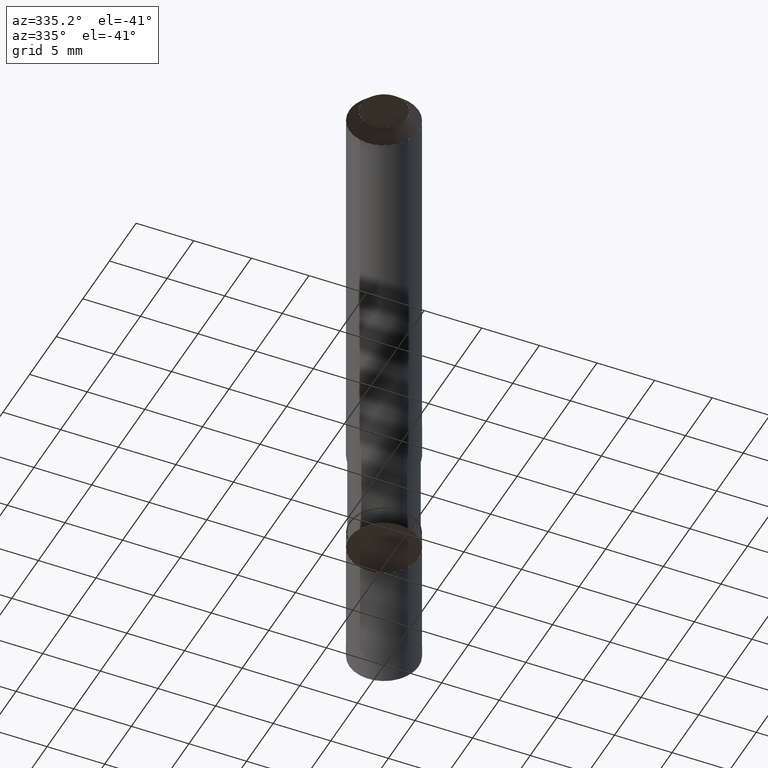
[diagram: clean part render]
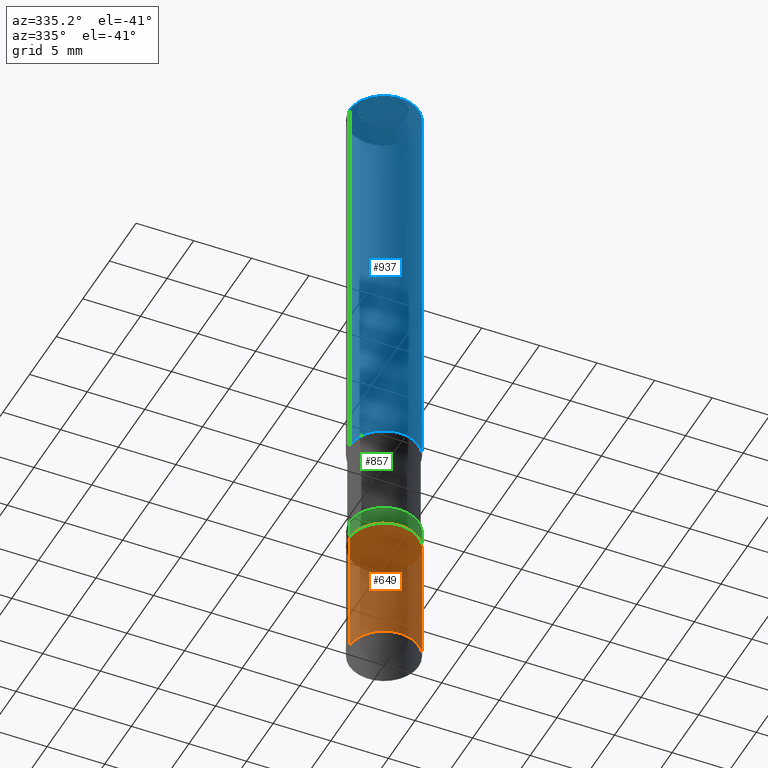
[diagram: same view with three faces highlighted in distinct colors, each labeled with its STEP entity id]
A machine part, auxiliary view with three faces highlighted in distinct colors.
Their STEP definitions:

[orange] entity #649 — the highlighted face is a freeform B-spline surface patch.
#448=CARTESIAN_POINT('',(3.0,0.0,-20.9));
#452=CARTESIAN_POINT('',(-3.0,0.0,-20.9));
#453=CARTESIAN_POINT('',(3.0,0.0,-9.625));
#457=CARTESIAN_POINT('',(-3.0,0.0,-9.625));
#462=CARTESIAN_POINT('',(-3.0,-3.0,-20.9));
#463=CARTESIAN_POINT('',(0.0,-3.0,-20.9));
#464=CARTESIAN_POINT('',(3.0,-3.0,-20.9));
#465=CARTESIAN_POINT('',(-3.0,-3.0,-9.625));
#466=CARTESIAN_POINT('',(0.0,-3.0,-9.625));
#467=CARTESIAN_POINT('',(3.0,-3.0,-9.625));
#630=(
BOUNDED_SURFACE()
B_SPLINE_SURFACE(1,2,(
(#452,#462,#463,#464,#448),
(#457,#465,#466,#467,#453)
), .UNSPECIFIED.,.F.,.F.,.F.)
B_SPLINE_SURFACE_WITH_KNOTS((2,2),(3,2,3),(
0.0,1.0),(
0.0,0.5,1.0), .UNSPECIFIED.)
GEOMETRIC_REPRESENTATION_ITEM()
RATIONAL_B_SPLINE_SURFACE(((1.0,0.707106781187,1.0,0.707106781187,1.0),
(1.0,0.707106781187,1.0,0.707106781187,1.0)
))
REPRESENTATION_ITEM('')
SURFACE()
);
#631=(
BOUNDED_CURVE()
B_SPLINE_CURVE(2,(#448,#464,#463,#462,#452),.UNSPECIFIED.,.F.,.F.)
B_SPLINE_CURVE_WITH_KNOTS((3,2,3),
(0.0,0.5,1.0),.UNSPECIFIED.)
CURVE()
GEOMETRIC_REPRESENTATION_ITEM()
RATIONAL_B_SPLINE_CURVE((1.0,0.707106781187,1.0,0.707106781187,1.0))
REPRESENTATION_ITEM('')
);
#632=(
BOUNDED_CURVE()
B_SPLINE_CURVE(1,(#452,#457),.UNSPECIFIED.,.F.,.F.)
B_SPLINE_CURVE_WITH_KNOTS((2,2),
(0.0,1.0),.UNSPECIFIED.)
CURVE()
GEOMETRIC_REPRESENTATION_ITEM()
RATIONAL_B_SPLINE_CURVE((1.0,1.0))
REPRESENTATION_ITEM('')
);
#633=(
BOUNDED_CURVE()
B_SPLINE_CURVE(2,(#457,#465,#466,#467,#453),.UNSPECIFIED.,.F.,.F.)
B_SPLINE_CURVE_WITH_KNOTS((3,2,3),
(0.0,0.5,1.0),.UNSPECIFIED.)
CURVE()
GEOMETRIC_REPRESENTATION_ITEM()
RATIONAL_B_SPLINE_CURVE((1.0,0.707106781187,1.0,0.707106781187,1.0))
REPRESENTATION_ITEM('')
);
#634=(
BOUNDED_CURVE()
B_SPLINE_CURVE(1,(#453,#448),.UNSPECIFIED.,.F.,.F.)
B_SPLINE_CURVE_WITH_KNOTS((2,2),
(0.0,1.0),.UNSPECIFIED.)
CURVE()
GEOMETRIC_REPRESENTATION_ITEM()
RATIONAL_B_SPLINE_CURVE((1.0,1.0))
REPRESENTATION_ITEM('')
);
#635=VERTEX_POINT('',#448);
#636=VERTEX_POINT('',#452);
#637=VERTEX_POINT('',#453);
#638=VERTEX_POINT('',#457);
#639=EDGE_CURVE('',#635,#636,#631,.T.);
#640=EDGE_CURVE('',#636,#638,#632,.T.);
#641=EDGE_CURVE('',#638,#637,#633,.T.);
#642=EDGE_CURVE('',#637,#635,#634,.T.);
#643=ORIENTED_EDGE('',*,*,#639,.T.);
#644=ORIENTED_EDGE('',*,*,#640,.T.);
#645=ORIENTED_EDGE('',*,*,#641,.T.);
#646=ORIENTED_EDGE('',*,*,#642,.T.);
#647=EDGE_LOOP('',(#643,#644,#645,#646));
#648=FACE_OUTER_BOUND('',#647,.T.);
#649=ADVANCED_FACE('',(#648),#630,.T.);

[blue] entity #937 — the highlighted face is a freeform B-spline surface patch.
#483=CARTESIAN_POINT('',(3.0,0.0,0.0));
#487=CARTESIAN_POINT('',(-3.0,0.0,0.0));
#488=CARTESIAN_POINT('',(3.0,0.0,35.0));
#492=CARTESIAN_POINT('',(-3.0,0.0,35.0));
#508=CARTESIAN_POINT('',(-3.0,-3.0,0.0));
#509=CARTESIAN_POINT('',(0.0,-3.0,0.0));
#510=CARTESIAN_POINT('',(3.0,-3.0,0.0));
#511=CARTESIAN_POINT('',(-3.0,-3.0,35.0));
#512=CARTESIAN_POINT('',(0.0,-3.0,35.0));
#513=CARTESIAN_POINT('',(3.0,-3.0,35.0));
#918=(
BOUNDED_SURFACE()
B_SPLINE_SURFACE(1,2,(
(#487,#508,#509,#510,#483),
(#492,#511,#512,#513,#488)
), .UNSPECIFIED.,.F.,.F.,.F.)
B_SPLINE_SURFACE_WITH_KNOTS((2,2),(3,2,3),(
0.0,1.0),(
0.0,0.5,1.0), .UNSPECIFIED.)
GEOMETRIC_REPRESENTATION_ITEM()
RATIONAL_B_SPLINE_SURFACE(((1.0,0.707106781187,1.0,0.707106781187,1.0),
(1.0,0.707106781187,1.0,0.707106781187,1.0)
))
REPRESENTATION_ITEM('')
SURFACE()
);
#919=(
BOUNDED_CURVE()
B_SPLINE_CURVE(2,(#483,#510,#509,#508,#487),.UNSPECIFIED.,.F.,.F.)
B_SPLINE_CURVE_WITH_KNOTS((3,2,3),
(0.0,0.5,1.0),.UNSPECIFIED.)
CURVE()
GEOMETRIC_REPRESENTATION_ITEM()
RATIONAL_B_SPLINE_CURVE((1.0,0.707106781187,1.0,0.707106781187,1.0))
REPRESENTATION_ITEM('')
);
#920=(
BOUNDED_CURVE()
B_SPLINE_CURVE(1,(#487,#492),.UNSPECIFIED.,.F.,.F.)
B_SPLINE_CURVE_WITH_KNOTS((2,2),
(0.0,1.0),.UNSPECIFIED.)
CURVE()
GEOMETRIC_REPRESENTATION_ITEM()
RATIONAL_B_SPLINE_CURVE((1.0,1.0))
REPRESENTATION_ITEM('')
);
#921=(
BOUNDED_CURVE()
B_SPLINE_CURVE(2,(#492,#511,#512,#513,#488),.UNSPECIFIED.,.F.,.F.)
B_SPLINE_CURVE_WITH_KNOTS((3,2,3),
(0.0,0.5,1.0),.UNSPECIFIED.)
CURVE()
GEOMETRIC_REPRESENTATION_ITEM()
RATIONAL_B_SPLINE_CURVE((1.0,0.707106781187,1.0,0.707106781187,1.0))
REPRESENTATION_ITEM('')
);
#922=(
BOUNDED_CURVE()
B_SPLINE_CURVE(1,(#488,#483),.UNSPECIFIED.,.F.,.F.)
B_SPLINE_CURVE_WITH_KNOTS((2,2),
(0.0,1.0),.UNSPECIFIED.)
CURVE()
GEOMETRIC_REPRESENTATION_ITEM()
RATIONAL_B_SPLINE_CURVE((1.0,1.0))
REPRESENTATION_ITEM('')
);
#923=VERTEX_POINT('',#483);
#924=VERTEX_POINT('',#487);
#925=VERTEX_POINT('',#488);
#926=VERTEX_POINT('',#492);
#927=EDGE_CURVE('',#923,#924,#919,.T.);
#928=EDGE_CURVE('',#924,#926,#920,.T.);
#929=EDGE_CURVE('',#926,#925,#921,.T.);
#930=EDGE_CURVE('',#925,#923,#922,.T.);
#931=ORIENTED_EDGE('',*,*,#927,.T.);
#932=ORIENTED_EDGE('',*,*,#928,.T.);
#933=ORIENTED_EDGE('',*,*,#929,.T.);
#934=ORIENTED_EDGE('',*,*,#930,.T.);
#935=EDGE_LOOP('',(#931,#932,#933,#934));
#936=FACE_OUTER_BOUND('',#935,.T.);
#937=ADVANCED_FACE('',(#936),#918,.T.);

[green] entity #857 — the highlighted face is a freeform B-spline surface patch.
#453=CARTESIAN_POINT('',(3.0,0.0,-9.625));
#457=CARTESIAN_POINT('',(-3.0,0.0,-9.625));
#465=CARTESIAN_POINT('',(-3.0,-3.0,-9.625));
#466=CARTESIAN_POINT('',(0.0,-3.0,-9.625));
#467=CARTESIAN_POINT('',(3.0,-3.0,-9.625));
#468=CARTESIAN_POINT('',(3.0,0.0,-8.0));
#472=CARTESIAN_POINT('',(-3.0,0.0,-8.0));
#499=CARTESIAN_POINT('',(-3.0,-3.0,-8.0));
#500=CARTESIAN_POINT('',(0.0,-3.0,-8.0));
#501=CARTESIAN_POINT('',(3.0,-3.0,-8.0));
#838=(
BOUNDED_SURFACE()
B_SPLINE_SURFACE(1,2,(
(#457,#465,#466,#467,#453),
(#472,#499,#500,#501,#468)
), .UNSPECIFIED.,.F.,.F.,.F.)
B_SPLINE_SURFACE_WITH_KNOTS((2,2),(3,2,3),(
0.0,1.0),(
0.0,0.5,1.0), .UNSPECIFIED.)
GEOMETRIC_REPRESENTATION_ITEM()
RATIONAL_B_SPLINE_SURFACE(((1.0,0.707106781187,1.0,0.707106781187,1.0),
(1.0,0.707106781187,1.0,0.707106781187,1.0)
))
REPRESENTATION_ITEM('')
SURFACE()
);
#839=(
BOUNDED_CURVE()
B_SPLINE_CURVE(2,(#453,#467,#466,#465,#457),.UNSPECIFIED.,.F.,.F.)
B_SPLINE_CURVE_WITH_KNOTS((3,2,3),
(0.0,0.5,1.0),.UNSPECIFIED.)
CURVE()
GEOMETRIC_REPRESENTATION_ITEM()
RATIONAL_B_SPLINE_CURVE((1.0,0.707106781187,1.0,0.707106781187,1.0))
REPRESENTATION_ITEM('')
);
#840=(
BOUNDED_CURVE()
B_SPLINE_CURVE(1,(#457,#472),.UNSPECIFIED.,.F.,.F.)
B_SPLINE_CURVE_WITH_KNOTS((2,2),
(0.0,1.0),.UNSPECIFIED.)
CURVE()
GEOMETRIC_REPRESENTATION_ITEM()
RATIONAL_B_SPLINE_CURVE((1.0,1.0))
REPRESENTATION_ITEM('')
);
#841=(
BOUNDED_CURVE()
B_SPLINE_CURVE(2,(#472,#499,#500,#501,#468),.UNSPECIFIED.,.F.,.F.)
B_SPLINE_CURVE_WITH_KNOTS((3,2,3),
(0.0,0.5,1.0),.UNSPECIFIED.)
CURVE()
GEOMETRIC_REPRESENTATION_ITEM()
RATIONAL_B_SPLINE_CURVE((1.0,0.707106781187,1.0,0.707106781187,1.0))
REPRESENTATION_ITEM('')
);
#842=(
BOUNDED_CURVE()
B_SPLINE_CURVE(1,(#468,#453),.UNSPECIFIED.,.F.,.F.)
B_SPLINE_CURVE_WITH_KNOTS((2,2),
(0.0,1.0),.UNSPECIFIED.)
CURVE()
GEOMETRIC_REPRESENTATION_ITEM()
RATIONAL_B_SPLINE_CURVE((1.0,1.0))
REPRESENTATION_ITEM('')
);
#843=VERTEX_POINT('',#453);
#844=VERTEX_POINT('',#457);
#845=VERTEX_POINT('',#468);
#846=VERTEX_POINT('',#472);
#847=EDGE_CURVE('',#843,#844,#839,.T.);
#848=EDGE_CURVE('',#844,#846,#840,.T.);
#849=EDGE_CURVE('',#846,#845,#841,.T.);
#850=EDGE_CURVE('',#845,#843,#842,.T.);
#851=ORIENTED_EDGE('',*,*,#847,.T.);
#852=ORIENTED_EDGE('',*,*,#848,.T.);
#853=ORIENTED_EDGE('',*,*,#849,.T.);
#854=ORIENTED_EDGE('',*,*,#850,.T.);
#855=EDGE_LOOP('',(#851,#852,#853,#854));
#856=FACE_OUTER_BOUND('',#855,.T.);
#857=ADVANCED_FACE('',(#856),#838,.T.);